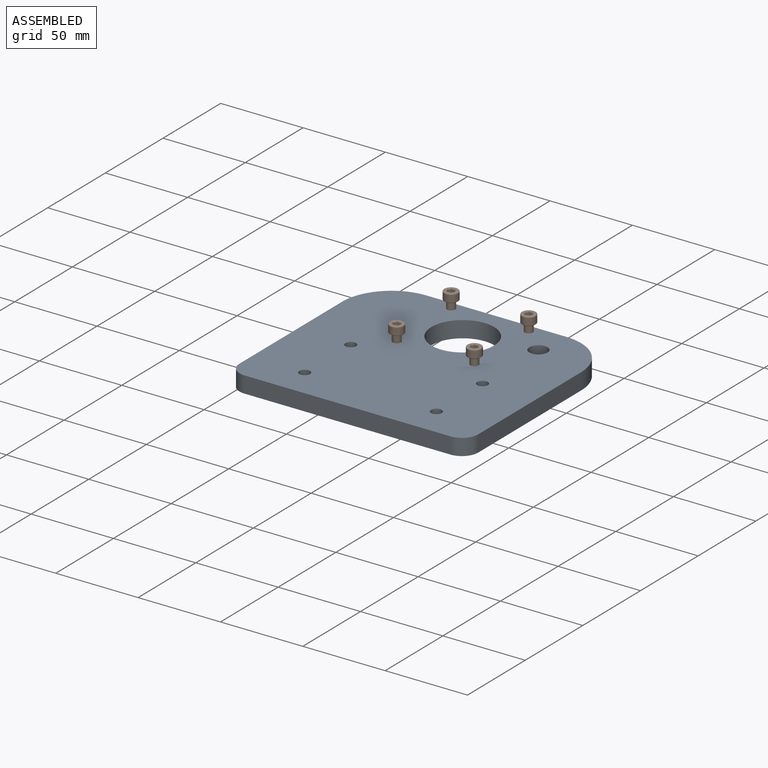
[diagram: assembled view]
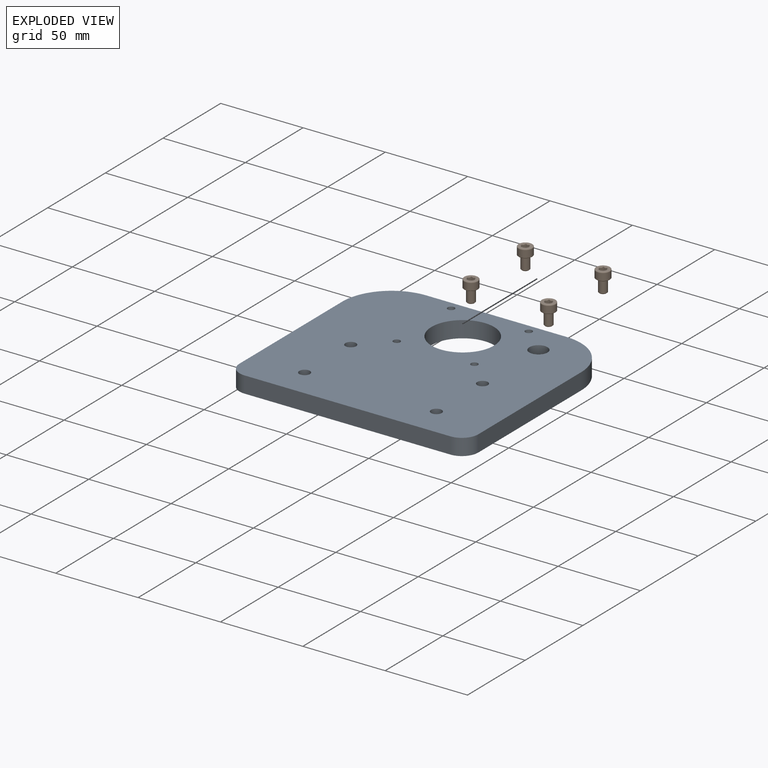
[diagram: exploded view]
GUIDED TOUR — FREECAD ASSEMBLY "ПлитаМотораY"

This assembly has 2 components, labeled P0..P1 below (a component is one placed body or linked part; the same part can appear more than once), held together by 0 modeled joints plus 1 derived contact edge. A joint is a constraint between two components; its type names the relative motion it leaves free:
  CONTACT — a derived adjacency edge — the two components touch in the source model (clearance under 2% of the assembly's diagonal); it is measured from the geometry, not a modeled constraint.
Axis/direction vectors are unit vectors and 'through' points are millimeter coordinates, both in the assembly's world frame.

MATES
  1. CONTACT "contact_0_1": P0 <-> P1, contact direction (0.000, 1.000, 0.000) through (-2.94, -50.21, -39.25) mm (derived from contact, not a modeled constraint)

ASSEMBLY ORDER
  1. P1 — the base component [order verified]
  2. P0 [order verified]
Order-tag legend:
  [order verified] — this step's position reverses a verified removal order: the component was checked to insert without passing through the ones already placed.

Of the 2 components, 1 carries a construction recipe — the FreeCAD feature program (sketches with constraints, then the solid features that consume them) that regenerates the part from scratch, quoted from this document or from the linked companion document it references; the rest are supplied as boundary geometry only. The tour below walks the components in assembly order: each is shown spotlighted twice — in the assembled view, then in the exploded view, where a leader line traces a displaced component back to its assembled socket (components that stay in place when exploded have no leader line; saturated green if recipe-attached, orange if geometry-only; every other component desaturated gray) — followed by its recipe or geometry summary and the mates that hold it.
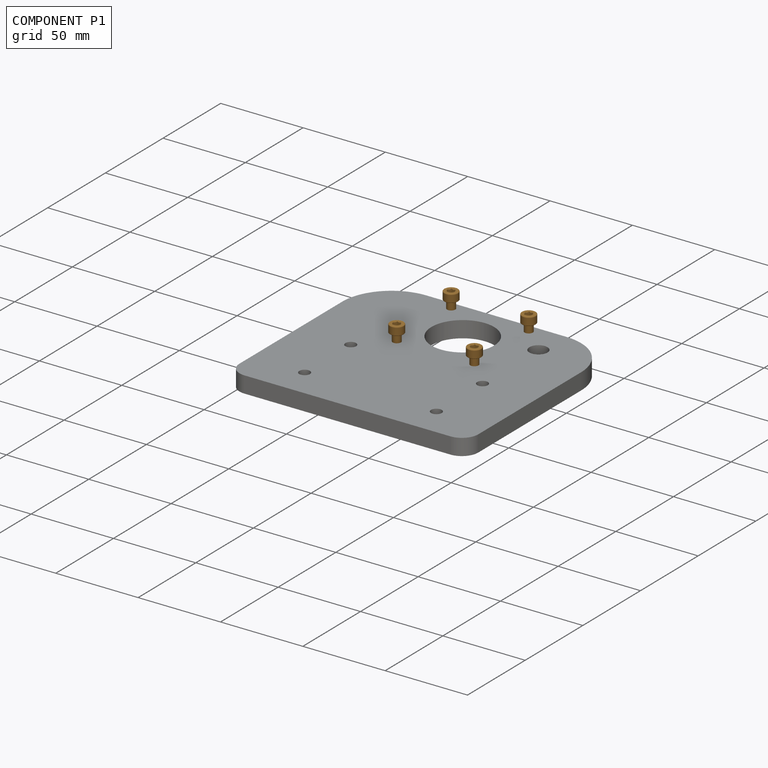
[diagram: component P1 — assembled]
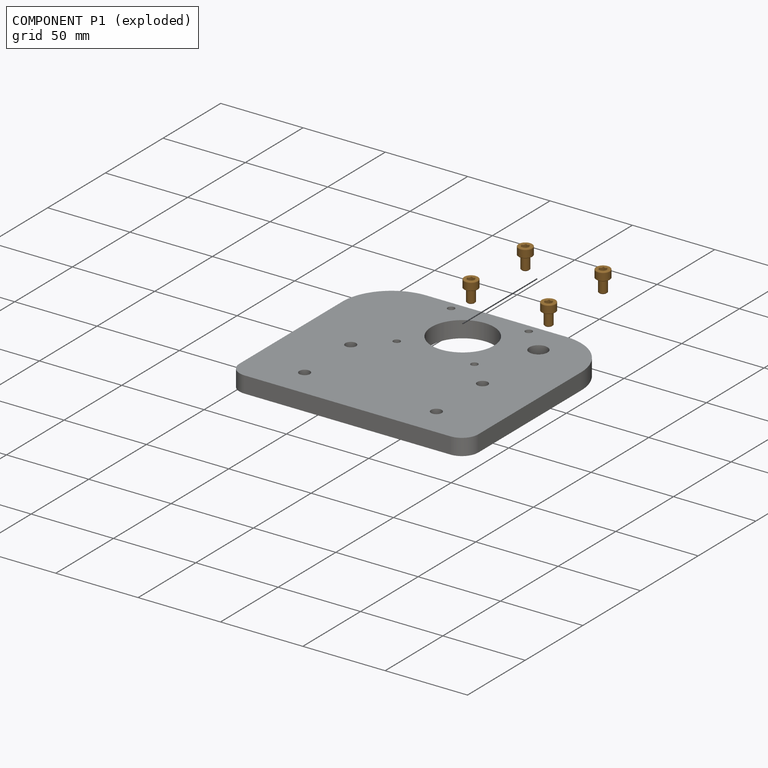
[diagram: component P1 — exploded]
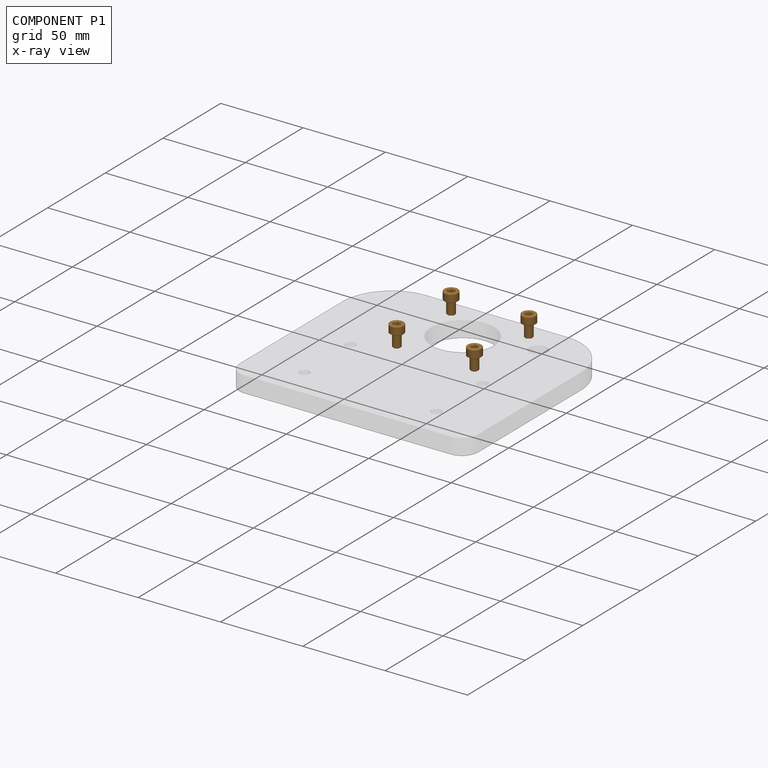
[diagram: component P1 — x-ray view]
COMPONENT P1 — geometry summary ("M5x8-Screw001"; no construction recipe available for this part):
  bounding box: 55.6 x 55.6 x 13.0 mm
  tessellated surface: 30,912 triangles
  volume: 1573 mm^3 (4% of its bounding box)
  symmetry: mirror-symmetric across its x mid-plane, y mid-plane
Held by: resting contact with P0 (derived edge).
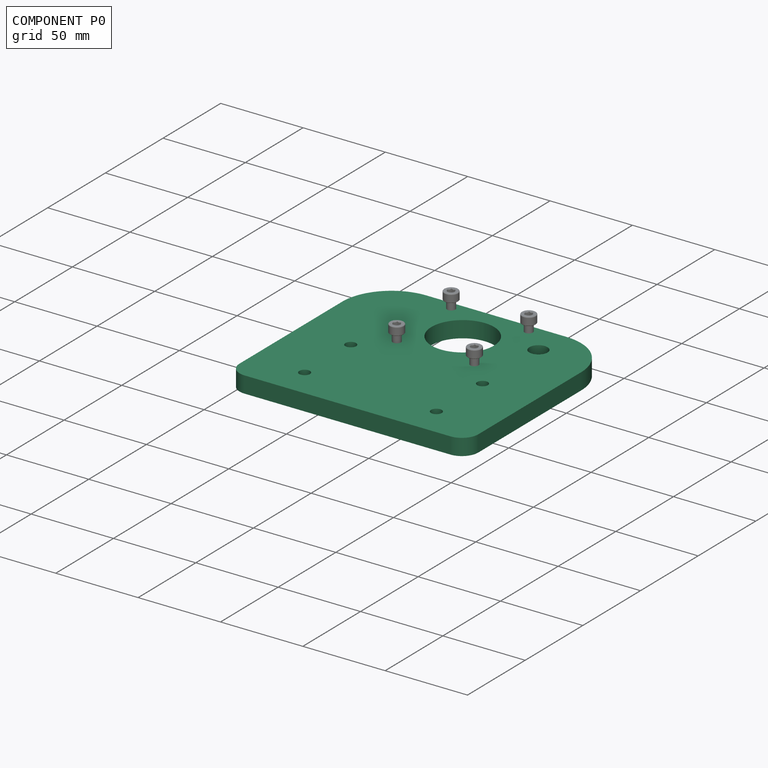
[diagram: component P0 — assembled]
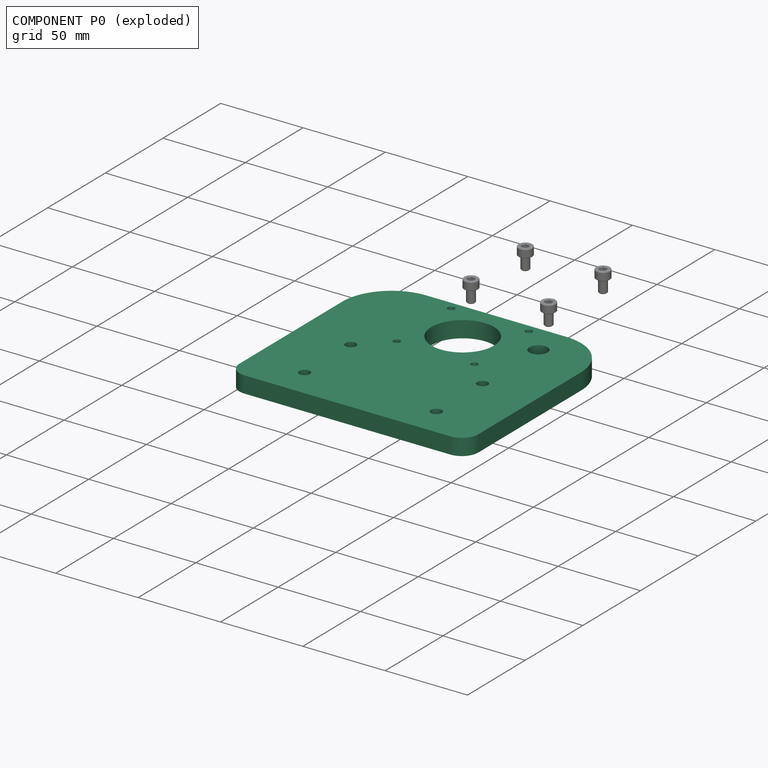
[diagram: component P0 — exploded]
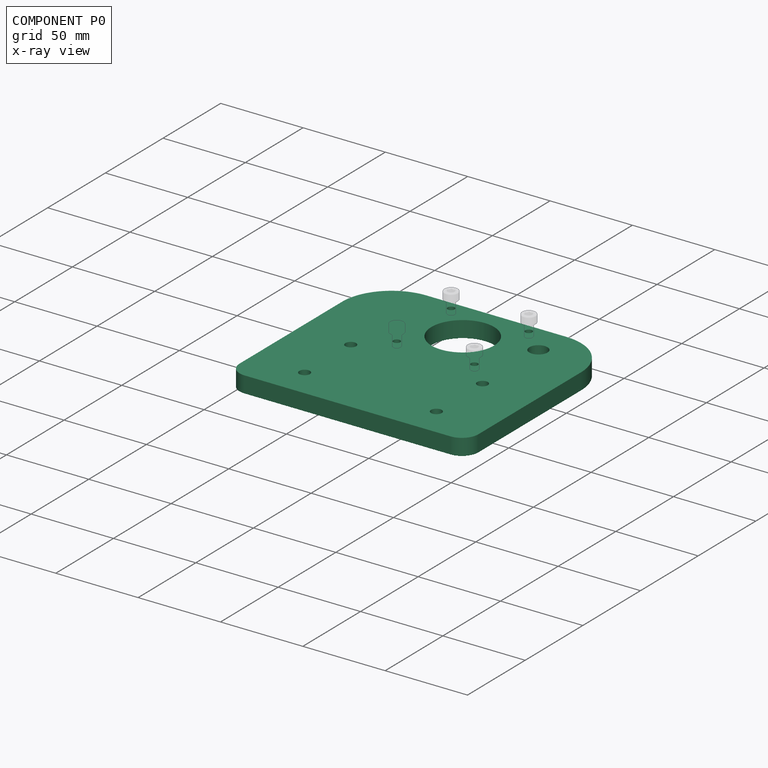
[diagram: component P0 — x-ray view]
COMPONENT P0 — recipe-attached ("ПластинаY2", a linked part whose construction recipe lives in a companion FreeCAD document of the same project; that document's serialized recipe follows).
Held by: resting contact with P1 (derived edge).
Construction recipe (the companion document, serialized — sketch geometry with constraints, then the solid features built on it; lengths are millimeters unless a unit is written):

FCSTD DOCUMENT  (FreeCAD 0.21R38887 (Git))
Label: ПластинаY2
License: All rights reserved
LicenseURL: http://en.wikipedia.org/wiki/All_rights_reserved
objects: App::Link×3, Sketcher::SketchObject×1, PartDesign::Pad×1, PartDesign::Body×1
note: 6 computed .brp shape members not serialized (recipe doc carries the construction recipe); baked Part::Feature solids carry a one-line shape summary decoded from their .brp
EXTERNAL_REF file=../../../ТаблицаПараметров.FCStd obj=Spreadsheet
EXTERNAL_REF file=../../../ТаблицаПараметров.FCStd obj=Spreadsheet007
EXTERNAL_REF file=../../../ТаблицаПараметров.FCStd obj=Spreadsheet009

FEATURE [Sketcher::SketchObject] Sketch
  ArcFitTolerance = 0
  ExternalBSplineMaxDegree = 0
  ExternalBSplineTolerance = 0
  FullyConstrained = true
  InternalTolerance = 1e-06
  InvalidShape = false
  MakeInternals = false
  TreeRank = 220
  ValidateShape = false
  expr: Constraints[0] = <<Link002(NEMA23Table)>>.PosadkaMotor
  expr: Constraints[1] = <<ТаблицаПараметров>>#<<ПластиныY>>.Len1
  expr: Constraints[2] = <<ТаблицаПараметров>>#<<ПластиныY>>.Heigh1
  expr: Constraints[37] = <<Link001(Профиль)>>.HTpaz1
  expr: Constraints[38] = <<Link001(Профиль)>>.HTpaz2
  expr: Constraints[42] = <<Link002(NEMA23Table)>>.diamRezba
  expr: Constraints[51] = <<Link002(NEMA23Table)>>.DistOtv
  expr: Constraints[52] = <<Link002(NEMA23Table)>>.DistOtv
  expr: Constraints[54] = <<Link(ПластиныY)>>.Heigh2
  sketch-geometry (19):
    g0: ArcOfCircle CenterX=62.5 CenterY=10 CenterZ=0 NormalX=0 NormalY=0 NormalZ=1 AngleXU=0 Radius=10 StartAngle=4.71239 EndAngle=6.28319
    g1: LineSegment StartX=-72.5 StartY=99 StartZ=0 EndX=-72.5 EndY=10 EndZ=0
    g2: ArcOfCircle CenterX=-62.5 CenterY=10 CenterZ=0 NormalX=0 NormalY=0 NormalZ=1 AngleXU=0 Radius=10 StartAngle=3.14159 EndAngle=4.71239
    g3: ArcOfCircle CenterX=-42.5 CenterY=99 CenterZ=0 NormalX=0 NormalY=0 NormalZ=1 AngleXU=0 Radius=30 StartAngle=1.5708 EndAngle=3.14159
    g4: ArcOfCircle CenterX=42.5 CenterY=99 CenterZ=0 NormalX=0 NormalY=0 NormalZ=1 AngleXU=0 Radius=30 StartAngle=4e-16 EndAngle=1.5708
    g5: Circle CenterX=0 CenterY=100 CenterZ=0 NormalX=0 NormalY=0 NormalZ=-1 AngleXU=0 Radius=19.05
    g6: Circle CenterX=-40 CenterY=60 CenterZ=0 NormalX=0 NormalY=0 NormalZ=-1 AngleXU=0 Radius=3.25
    g7: Circle CenterX=40 CenterY=60 CenterZ=0 NormalX=0 NormalY=0 NormalZ=-1 AngleXU=0 Radius=3.25
    g8: Circle CenterX=40 CenterY=20 CenterZ=0 NormalX=0 NormalY=0 NormalZ=-1 AngleXU=0 Radius=3.25
    g9: Circle CenterX=-40 CenterY=20 CenterZ=0 NormalX=0 NormalY=0 NormalZ=-1 AngleXU=0 Radius=3.25
    g10: Circle CenterX=-23.57 CenterY=76.43 CenterZ=0 NormalX=0 NormalY=0 NormalZ=-1 AngleXU=0 Radius=2.1
    g11: Circle CenterX=23.57 CenterY=123.57 CenterZ=0 NormalX=0 NormalY=0 NormalZ=-1 AngleXU=0 Radius=2.1
    g12: Circle CenterX=-23.57 CenterY=123.57 CenterZ=0 NormalX=0 NormalY=0 NormalZ=-1 AngleXU=0 Radius=2.1
    g13: Circle CenterX=40 CenterY=108.5 CenterZ=0 NormalX=0 NormalY=0 NormalZ=-1 AngleXU=0 Radius=5.5
    g14: LineSegment StartX=42.5 StartY=129 StartZ=0 EndX=-42.5 EndY=129 EndZ=0
    g15: LineSegment StartX=72.5 StartY=10 StartZ=0 EndX=72.5 EndY=99 EndZ=0
    g16: LineSegment StartX=-62.5 StartY=7.1e-15 StartZ=0 EndX=62.5 EndY=-2.49e-14 EndZ=0
    g17: Circle [constr] CenterX=0 CenterY=100 CenterZ=0 NormalX=0 NormalY=0 NormalZ=1 AngleXU=0 Radius=33.333
    g18: Circle CenterX=23.57 CenterY=76.43 CenterZ=0 NormalX=0 NormalY=0 NormalZ=1 AngleXU=0 Radius=2.1
  constraints (58):
    c: Diameter(g5) = 38.1
    c: DistanceX(g1,g0) = 145
    c: DistanceY(g2,g3) = 129
    c: Equal(g3,g4)
    c: Radius(g3) = 30
    c: Equal(g2,g0)
    c: Radius(g2) = 10
    c: Equal(g15,g1)
    c: Vertical(g1)
    c: Vertical(g15)
    c: Horizontal(g14)
    c: Coincident(g1,g2)
    c: Coincident(g16,g2)
    c: Coincident(g0,g16)
    c: Coincident(g0,g15)
    c: Horizontal(g0,g0)
    c: Vertical(g0,g0)
    c: Horizontal(g1,g2)
    c: Vertical(g2,g2)
    c: Coincident(g1,g3)
    c: Coincident(g3,g14)
    c: Horizontal(g3,g1)
    c: Vertical(g3,g3)
    c: Coincident(g4,g15)
    c: Coincident(g4,g14)
    c: Vertical(g4,g4)
    c: Symmetric(g2,g0,g-2)
    c: PointOnObject(g0,g-1)
    c: Vertical(g6,g9)
    c: Horizontal(g7,g6)
    c: Vertical(g7,g8)
    c: Equal(g6,g9)
    c: Equal(g6,g8)
    c: Equal(g6,g7)
    c: Diameter(g6) = 6.5
    c: DistanceX(g9,g8) = 80
    c: Symmetric(g9,g8,g-2)
    c: DistanceY(g-1,g9) = 20
    c: DistanceY(g-1,g6) = 60
    c: Diameter(g13) = 11
    c: Equal(g10,g11)
    c: Equal(g10,g12)
    c: Diameter(g10) = 4.2
    c: PointOnObject(g10,g17)
    c: PointOnObject(g12,g17)
    c: PointOnObject(g11,g17)
    c: Horizontal(g12,g11)
    c: Vertical(g10,g12)
    c: DistanceY(g5,g13) = 8.5
    c: DistanceX(g5,g13) = 40
    c: Coincident(g5,g17)
    c: DistanceX(g12,g11) = 47.14
    c: DistanceY(g10,g12) = 47.14
    c: PointOnObject(g5,g-2)
    c: DistanceY(g-1,g5) = 100
    c: Equal(g10,g18)
    c: Horizontal(g10,g18)
    c: PointOnObject(g18,g17)
FEATURE [App::Link] Link  label="Link(ПластиныY)"
  AutoLinkLabel = true
  AutoPlacement = true
  LinkedObject = -> <external ../../../ТаблицаПараметров.FCStd>#Spreadsheet007
  SyncGroupVisibility = false
  TreeRank = 225
  _LinkVersion = 1
FEATURE [App::Link] Link001  label="Link001(Профиль)"
  AutoLinkLabel = true
  AutoPlacement = true
  LinkedObject = -> <external ../../../ТаблицаПараметров.FCStd>#Spreadsheet
  SyncGroupVisibility = false
  TreeRank = 226
  _LinkVersion = 1
FEATURE [PartDesign::Pad] Pad
  AddSubType = 0
  AlongSketchNormal = false
  AutoTaperInnerAngle = true
  CheckUpToFaceLimits = true
  ClaimChildren = false
  Direction = (0,0,1)
  Fit = 0
  FitJoin = 0
  InnerFit = 0
  InnerFitJoin = 0
  InvalidShape = false
  Length = 10
  Length2 = 10
  Linearize = true
  NewSolid = false
  Profile = -> Sketch
  ReferenceAxis = -> Sketch [N_Axis]
  Suppress = false
  TaperInnerAngle = 0
  TaperInnerAngleRev = 0
  TreeRank = 227
  Type = 0
  ValidateShape = true
  _ProfileBasedVersion = 1
FEATURE [PartDesign::Body] Body  label="ПластинаY2"
  AutoGroupSolids = false
  ClaimAllChildren = false
  ExportMode = 0
  Group = -> [Sketch,Pad]
  InvalidShape = false
  Origin = -> Origin
  Tip = -> Pad
  TreeRank = 222
  ValidateShape = false
  _ExportChildren = -> [Pad]
  _GroupVersion = 1
FEATURE [App::Link] Link002  label="Link002(NEMA23Table)"
  AutoLinkLabel = true
  AutoPlacement = true
  LinkedObject = -> <external ../../../ТаблицаПараметров.FCStd>#Spreadsheet009
  SyncGroupVisibility = false
  TreeRank = 228
  _LinkVersion = 1
PROVENANCE & LICENSES
Assembly and component geometry: a FreeCAD (.FCStd) document from a public repository crawl; components, placements and joints were extracted with FreeCAD and each solid tessellated.
Construction recipes: the document's own serialized feature recipes (and, for linked parts, the recipes of companion documents from the same project).
License: as declared in the source repository (recorded in the dataset sidecar).
Joints: native FreeCAD joints and A2plus constraints are mapped to standard mate types; edges marked 'derived from contact' connect touching components and are measured from the geometry, not modeled.
Verification: 1 of this assembly's 2 components carries a construction recipe (1 from linked companion documents in the same project); the rest are geometry-only. Every component's tessellation passed the extraction mesh gates (mesh-volume checksum against the B-rep where available, bounding-box inflation <= 2%).
Renders: orthographic iso camera (az 35 / el 25); the floor grid conveys scale (grid pitch printed in each image; no ruler). In the exploded view each component is displaced by its stored offset vector: the offsets alone carry the explosion direction (mate normal/axis signs are not orientation cues and do not encode it), and separation distances are assigned per mate-chain, not proportionally to assembly-order depth.
